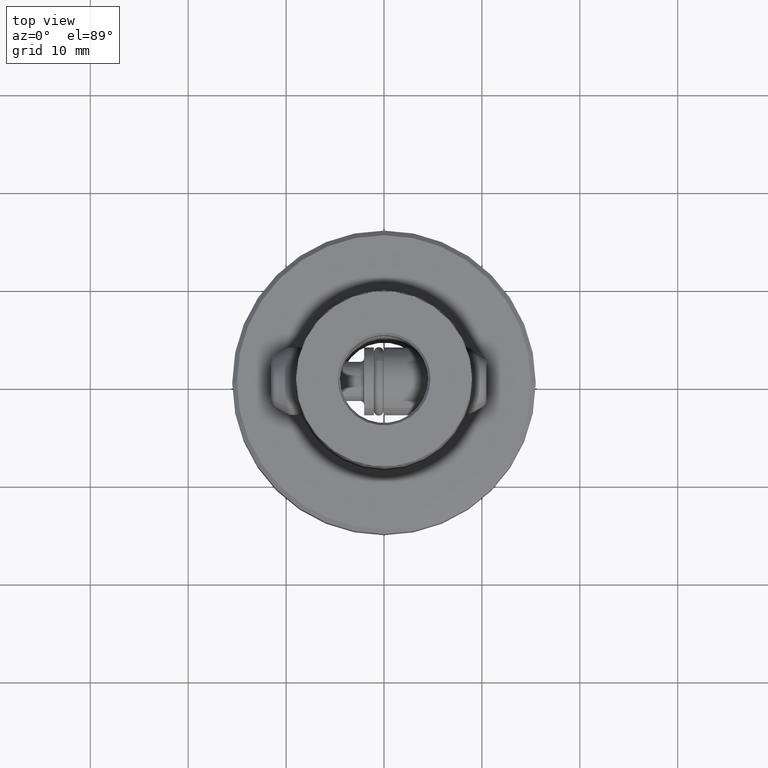
[diagram: clean part render]
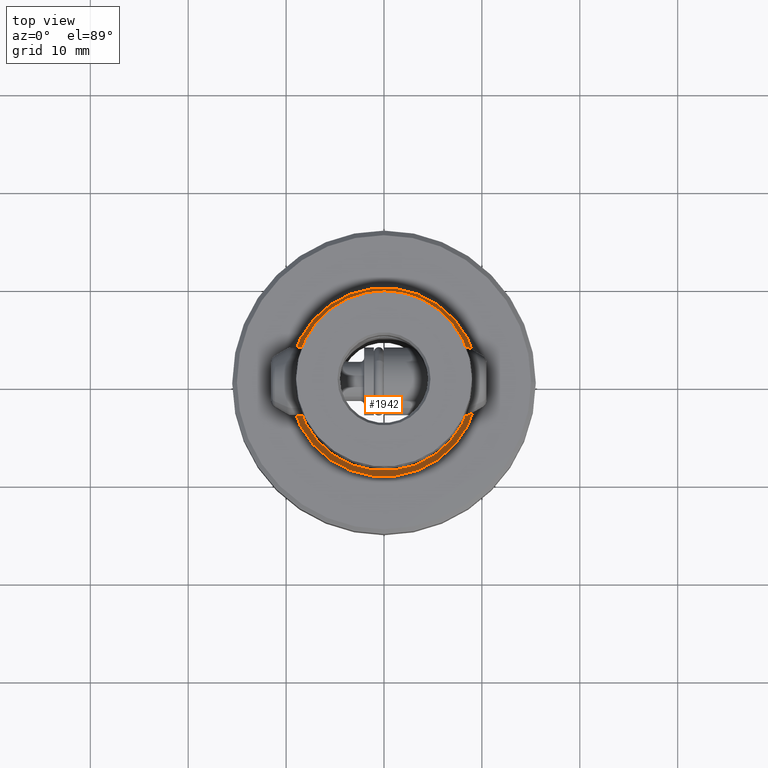
[diagram: same view with one face highlighted and labeled with its STEP entity id]
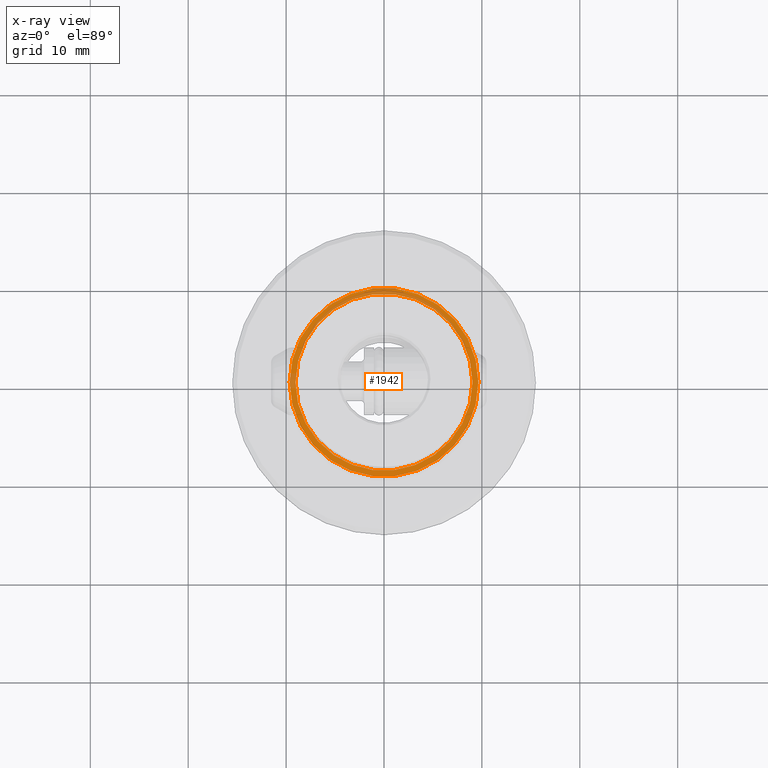
[diagram: x-ray of the same camera — body ghosted, the highlighted face saturated]
A machine part, top view. The second image highlights one B-rep face of the part: STEP entity #1942.
The next image is the same camera in x-ray: the body ghosted, the highlighted face saturated — about 19% of this face is hidden behind the body in this view.
In plain terms, the highlighted planar face has unit normal (0, 0, -1).
Its self-contained STEP definition (entity closure, byte-faithful):
#718=EDGE_CURVE('NONE',#1146,#1850,#2031,.F.);
#772=VERTEX_POINT('NONE',#2091);
#1030=EDGE_CURVE('NONE',#1100,#772,#2378,.F.);
#1100=VERTEX_POINT('NONE',#2453);
#1146=VERTEX_POINT('NONE',#2506);
#1850=VERTEX_POINT('NONE',#3296);
#1858=EDGE_CURVE('NONE',#772,#1100,#3306,.F.);
#1868=EDGE_CURVE('NONE',#1850,#1146,#3316,.F.);
#1942=ADVANCED_FACE('NONE',(#3399,#3400),#3401,.F.);
#2031=CIRCLE('',#3497,9.03660865617867);
#2091=CARTESIAN_POINT('',(-9.6457300593614,2.47342175057721E-014,-0.124999999999979));
#2378=CIRCLE('',#4172,9.6457300593614);
#2453=CARTESIAN_POINT('',(9.6457300593614,-2.35244309419038E-014,-0.124999999999979));
#2506=CARTESIAN_POINT('',(9.03660865617866,-2.15185177692883E-014,-0.124999999999979));
#3296=CARTESIAN_POINT('',(-9.03660865617866,2.26251466070245E-014,-0.124999999999979));
#3306=CIRCLE('',#6108,9.6457300593614);
#3316=CIRCLE('',#6164,9.03660865617867);
#3399=FACE_OUTER_BOUND('',#6281,.T.);
#3400=FACE_BOUND('',#6282,.T.);
#3401=PLANE('',#6283);
#3497=AXIS2_PLACEMENT_3D('',#6372,#6373,#6374);
#4172=AXIS2_PLACEMENT_3D('',#6771,#6772,#6773);
#6108=AXIS2_PLACEMENT_3D('',#7953,#7954,#7955);
#6164=AXIS2_PLACEMENT_3D('',#7962,#7963,#7964);
#6281=EDGE_LOOP('',(#8092,#8093));
#6282=EDGE_LOOP('',(#8094,#8095));
#6283=AXIS2_PLACEMENT_3D('',#8096,#8097,#8098);
#6372=CARTESIAN_POINT('',(0.0,0.0,-0.124999999999979));
#6373=DIRECTION('',(0.0,0.0,-1.0));
#6374=DIRECTION('',(0.0,1.0,0.0));
#6771=CARTESIAN_POINT('',(0.0,0.0,-0.124999999999979));
#6772=DIRECTION('',(0.0,-0.0,1.0));
#6773=DIRECTION('',(1.0,-2.38126033648423E-015,-0.0));
#7953=CARTESIAN_POINT('',(0.0,0.0,-0.124999999999979));
#7954=DIRECTION('',(0.0,-0.0,1.0));
#7955=DIRECTION('',(1.0,-2.38126033648423E-015,-0.0));
#7962=CARTESIAN_POINT('',(0.0,0.0,-0.124999999999979));
#7963=DIRECTION('',(0.0,0.0,-1.0));
#7964=DIRECTION('',(0.0,1.0,0.0));
#8092=ORIENTED_EDGE('',*,*,#1030,.F.);
#8093=ORIENTED_EDGE('',*,*,#1858,.F.);
#8094=ORIENTED_EDGE('',*,*,#718,.F.);
#8095=ORIENTED_EDGE('',*,*,#1868,.F.);
#8096=CARTESIAN_POINT('',(0.0,0.0,-0.124999999999979));
#8097=DIRECTION('',(0.0,0.0,-1.0));
#8098=DIRECTION('',(-1.0,0.0,0.0));